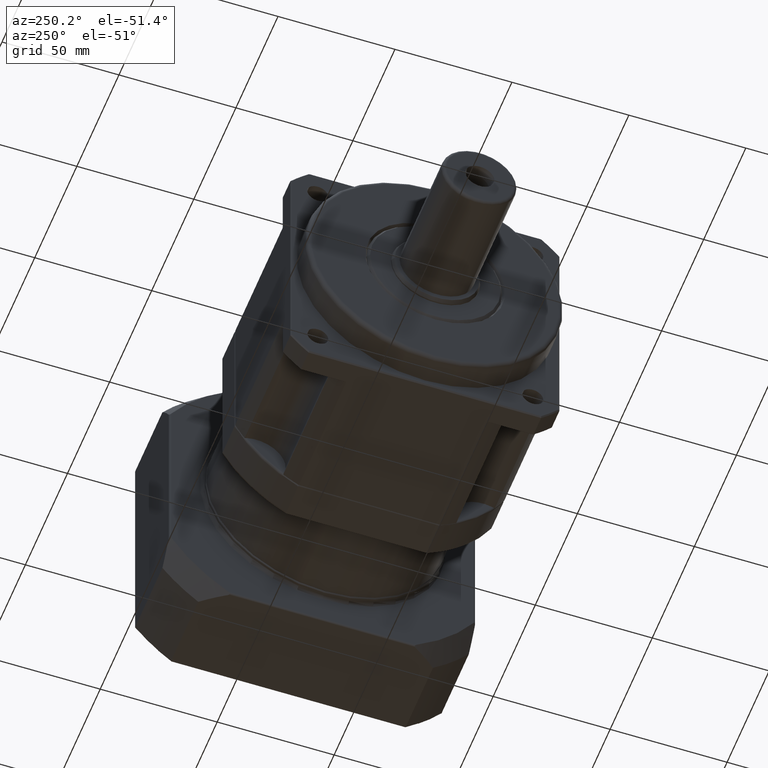
[diagram: clean part render]
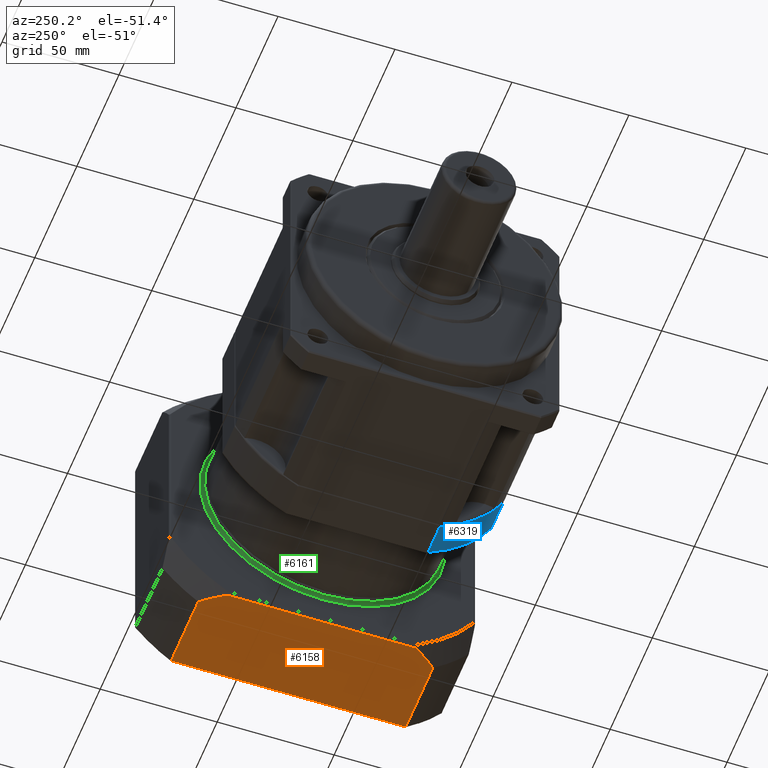
[diagram: same view with three faces highlighted in distinct colors, each labeled with its STEP entity id]
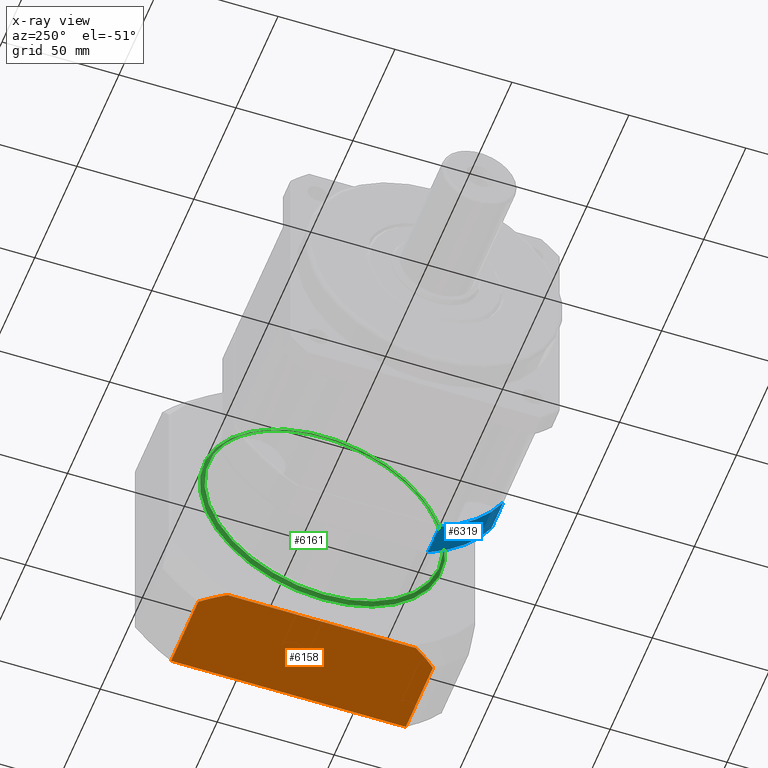
[diagram: x-ray of the same camera — body ghosted, the three highlighted faces saturated]
A machine part, auxiliary view with three faces highlighted in distinct colors.
The next image is the same camera in x-ray (body ghosted, the three faces saturated) — at least one of them is partly hidden behind the body in this view.
Their STEP definitions:

[orange] entity #6158 — the highlighted planar face has unit normal (-0, 0, -1).
#159=LINE('',#9580,#466);
#163=LINE('',#9593,#470);
#164=LINE('',#9595,#471);
#165=LINE('',#9596,#472);
#466=VECTOR('',#7574,32.2644831780048);
#470=VECTOR('',#7590,80.5108688314815);
#471=VECTOR('',#7591,32.2644831780048);
#472=VECTOR('',#7592,100.319489631876);
#912=PLANE('',#6679);
#1356=FACE_OUTER_BOUND('',#1820,.T.);
#1820=EDGE_LOOP('',(#4216,#4217,#4218,#4219,#4220,#4221));
#2440=CIRCLE('',#6659,76.881402172437);
#2448=CIRCLE('',#6670,76.881402172437);
#2792=VERTEX_POINT('',#9414);
#2793=VERTEX_POINT('',#9416);
#2804=VERTEX_POINT('',#9533);
#2805=VERTEX_POINT('',#9553);
#2808=VERTEX_POINT('',#9579);
#2812=VERTEX_POINT('',#9594);
#3367=EDGE_CURVE('',#2793,#2792,#2440,.T.);
#3381=EDGE_CURVE('',#2805,#2804,#2448,.T.);
#3385=EDGE_CURVE('',#2808,#2805,#159,.T.);
#3392=EDGE_CURVE('',#2793,#2804,#163,.T.);
#3393=EDGE_CURVE('',#2792,#2812,#164,.T.);
#3394=EDGE_CURVE('',#2808,#2812,#165,.T.);
#4216=ORIENTED_EDGE('',*,*,#3381,.T.);
#4217=ORIENTED_EDGE('',*,*,#3392,.F.);
#4218=ORIENTED_EDGE('',*,*,#3367,.T.);
#4219=ORIENTED_EDGE('',*,*,#3393,.T.);
#4220=ORIENTED_EDGE('',*,*,#3394,.F.);
#4221=ORIENTED_EDGE('',*,*,#3385,.T.);
#6158=ADVANCED_FACE('',(#1356),#912,.T.);
#6659=AXIS2_PLACEMENT_3D('',#9417,#7544,#7545);
#6670=AXIS2_PLACEMENT_3D('',#9554,#7566,#7567);
#6679=AXIS2_PLACEMENT_3D('',#9592,#7588,#7589);
#7544=DIRECTION('center_axis',(-6.52809391270748E-16,4.21725843390295E-15,
-1.));
#7545=DIRECTION('ref_axis',(4.72771356570086E-16,-1.,-4.21725843390295E-15));
#7566=DIRECTION('center_axis',(-6.52809391270748E-16,4.21725843390295E-15,
-1.));
#7567=DIRECTION('ref_axis',(4.72771356570086E-16,-1.,-4.21725843390295E-15));
#7574=DIRECTION('',(-1.,-4.72771356570088E-16,6.52809391270747E-16));
#7588=DIRECTION('center_axis',(-6.52809391270748E-16,4.21725843390295E-15,
-1.));
#7589=DIRECTION('ref_axis',(0.,-1.,-2.8421709430404E-15));
#7590=DIRECTION('',(4.72771356570086E-16,-1.,-4.21725843390295E-15));
#7591=DIRECTION('',(1.,4.72771356570088E-16,-6.52809391270747E-16));
#7592=DIRECTION('',(-4.72771356570086E-16,1.,4.21725843390295E-15));
#9414=CARTESIAN_POINT('',(47.6841212151059,-73.084780950453,-170.4535040948));
#9416=CARTESIAN_POINT('',(40.4486043931107,-82.98909135065,-170.4535040948));
#9417=CARTESIAN_POINT('Origin',(105.948604393111,-123.244525766391,-170.4535040948));
#9533=CARTESIAN_POINT('',(40.4486043931107,-163.499960182131,-170.4535040948));
#9553=CARTESIAN_POINT('',(47.6841212151059,-173.404270582329,-170.4535040948));
#9554=CARTESIAN_POINT('Origin',(105.948604393111,-123.244525766391,-170.4535040948));
#9579=CARTESIAN_POINT('',(79.9486043931107,-173.404270582328,-170.4535040948));
#9580=CARTESIAN_POINT('',(80.4486043931107,-173.404270582328,-170.4535040948));
#9592=CARTESIAN_POINT('Origin',(80.4486043931107,-57.7445257663907,-170.4535040948));
#9593=CARTESIAN_POINT('',(40.4486043931107,-90.4945257663907,-170.4535040948));
#9594=CARTESIAN_POINT('',(79.9486043931107,-73.0847809504529,-170.4535040948));
#9595=CARTESIAN_POINT('',(80.4486043931107,-73.0847809504529,-170.4535040948));
#9596=CARTESIAN_POINT('',(79.9486043931107,-90.4945257663907,-170.4535040948));

[blue] entity #6319 — the highlighted cylindrical surface (partial cylindrical patch) has radius 65 mm, axis along (-1, -0, -0).
#290=LINE('',#10602,#597);
#292=LINE('',#10606,#599);
#597=VECTOR('',#8241,14.);
#599=VECTOR('',#8245,14.);
#1517=FACE_OUTER_BOUND('',#2064,.T.);
#2064=EDGE_LOOP('',(#4804,#4805,#4806,#4807));
#2552=CIRCLE('',#6936,65.);
#2556=CIRCLE('',#6943,65.);
#3008=VERTEX_POINT('',#10454);
#3021=VERTEX_POINT('',#10572);
#3025=VERTEX_POINT('',#10601);
#3026=VERTEX_POINT('',#10605);
#3680=EDGE_CURVE('',#3008,#3021,#2552,.T.);
#3686=EDGE_CURVE('',#3021,#3025,#290,.T.);
#3688=EDGE_CURVE('',#3026,#3008,#292,.T.);
#3689=EDGE_CURVE('',#3025,#3026,#2556,.T.);
#4804=ORIENTED_EDGE('',*,*,#3680,.F.);
#4805=ORIENTED_EDGE('',*,*,#3688,.F.);
#4806=ORIENTED_EDGE('',*,*,#3689,.F.);
#4807=ORIENTED_EDGE('',*,*,#3686,.F.);
#5740=CYLINDRICAL_SURFACE('',#6942,65.);
#6319=ADVANCED_FACE('',(#1517),#5740,.T.);
#6936=AXIS2_PLACEMENT_3D('',#10591,#8227,#8228);
#6942=AXIS2_PLACEMENT_3D('',#10604,#8243,#8244);
#6943=AXIS2_PLACEMENT_3D('',#10607,#8246,#8247);
#8227=DIRECTION('center_axis',(-1.,-4.85755800782923E-16,-1.72164054506969E-16));
#8228=DIRECTION('ref_axis',(4.65219591152755E-16,-0.707106781186547,-0.707106781186548));
#8241=DIRECTION('',(1.,4.85755800782923E-16,1.72164054506969E-16));
#8243=DIRECTION('center_axis',(-1.,-4.85755800782923E-16,-1.72164054506969E-16));
#8244=DIRECTION('ref_axis',(-1.72164054506969E-16,-1.32271987416886E-15,
1.));
#8245=DIRECTION('',(-1.,-4.85755800782923E-16,-1.72164054506969E-16));
#8246=DIRECTION('center_axis',(1.,4.85755800782923E-16,1.72164054506969E-16));
#8247=DIRECTION('ref_axis',(4.65219591152755E-16,-0.707106781186547,-0.707106781186548));
#10454=CARTESIAN_POINT('',(-15.5513956068893,-153.555414898846,-162.4535040948));
#10572=CARTESIAN_POINT('',(-15.5513956068893,-180.744525766391,-135.264393227256));
#10591=CARTESIAN_POINT('Origin',(-15.5513956068893,-123.244525766391,-104.9535040948));
#10601=CARTESIAN_POINT('',(-1.55139560688932,-180.744525766391,-135.264393227256));
#10602=CARTESIAN_POINT('',(36.4486043931107,-180.744525766391,-135.264393227256));
#10604=CARTESIAN_POINT('Origin',(36.4486043931107,-123.244525766391,-104.9535040948));
#10605=CARTESIAN_POINT('',(-1.55139560688933,-153.555414898846,-162.4535040948));
#10606=CARTESIAN_POINT('',(36.4486043931107,-153.555414898846,-162.4535040948));
#10607=CARTESIAN_POINT('Origin',(-1.55139560688935,-123.244525766391,-104.9535040948));

[green] entity #6161 — the highlighted toroidal blend (fillet) surface has major radius 52.5 mm and minor (blend) radius 1.5 mm.
#858=TOROIDAL_SURFACE('',#6683,52.5,1.5);
#1122=FACE_BOUND('',#1824,.T.);
#1359=FACE_OUTER_BOUND('',#1823,.T.);
#1823=EDGE_LOOP('',(#4230));
#1824=EDGE_LOOP('',(#4231));
#2455=CIRCLE('',#6684,51.);
#2456=CIRCLE('',#6685,52.5);
#2814=VERTEX_POINT('',#9604);
#2815=VERTEX_POINT('',#9606);
#3398=EDGE_CURVE('',#2814,#2814,#2455,.T.);
#3399=EDGE_CURVE('',#2815,#2815,#2456,.T.);
#4230=ORIENTED_EDGE('',*,*,#3398,.T.);
#4231=ORIENTED_EDGE('',*,*,#3399,.T.);
#6161=ADVANCED_FACE('',(#1359,#1122),#858,.F.);
#6683=AXIS2_PLACEMENT_3D('',#9603,#7601,#7602);
#6684=AXIS2_PLACEMENT_3D('',#9605,#7603,#7604);
#6685=AXIS2_PLACEMENT_3D('',#9607,#7605,#7606);
#7601=DIRECTION('center_axis',(1.,4.72771356570088E-16,-6.52809391270747E-16));
#7602=DIRECTION('ref_axis',(6.57909940518611E-16,-3.94745964311167E-15,
1.));
#7603=DIRECTION('center_axis',(1.,4.72771356570088E-16,-6.52809391270747E-16));
#7604=DIRECTION('ref_axis',(6.52809391270748E-16,-4.14945855453653E-15,
1.));
#7605=DIRECTION('center_axis',(-1.,-4.72771356570088E-16,6.52809391270747E-16));
#7606=DIRECTION('ref_axis',(6.52809391270749E-16,-4.14945855453653E-15,
1.));
#9603=CARTESIAN_POINT('Origin',(37.9486043931107,-123.244525766391,-104.9535040948));
#9604=CARTESIAN_POINT('',(37.9486043931107,-123.244525766391,-155.9535040948));
#9605=CARTESIAN_POINT('Origin',(37.9486043931107,-123.244525766391,-104.9535040948));
#9606=CARTESIAN_POINT('',(39.4486043931107,-123.244525766391,-157.4535040948));
#9607=CARTESIAN_POINT('Origin',(39.4486043931107,-123.244525766391,-104.9535040948));